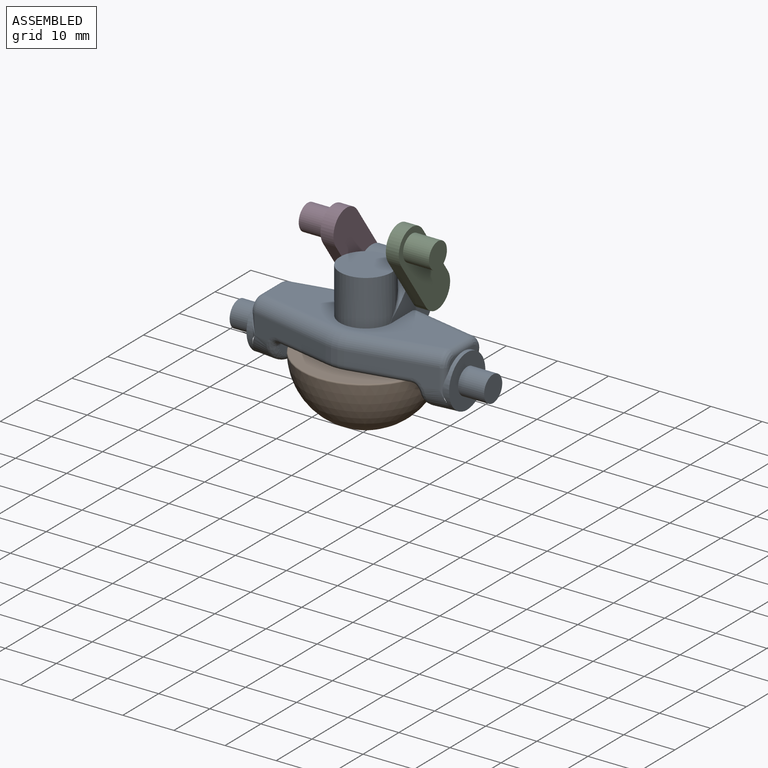
[diagram: assembled view]
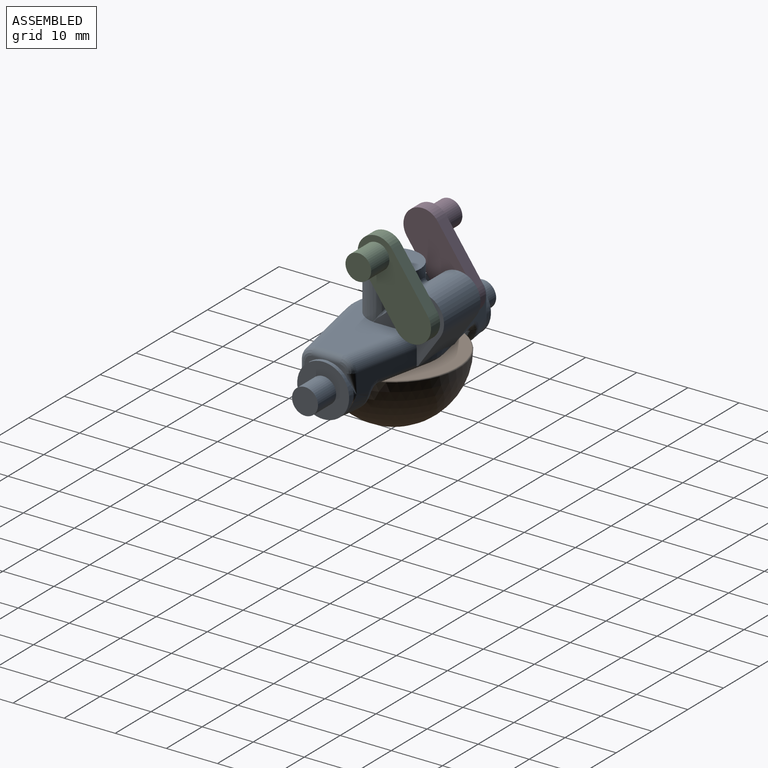
[diagram: assembled view, second angle]
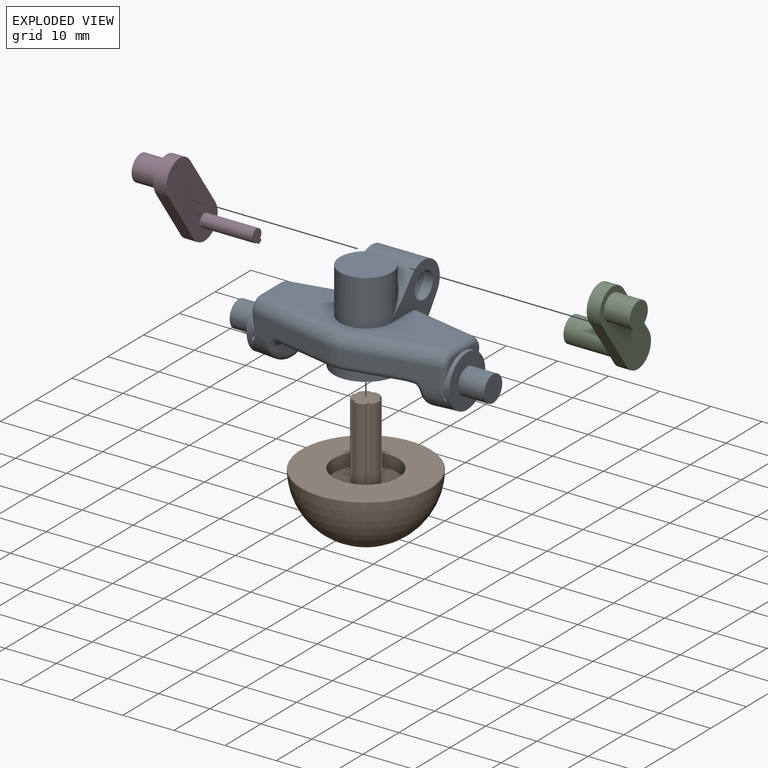
[diagram: exploded view]
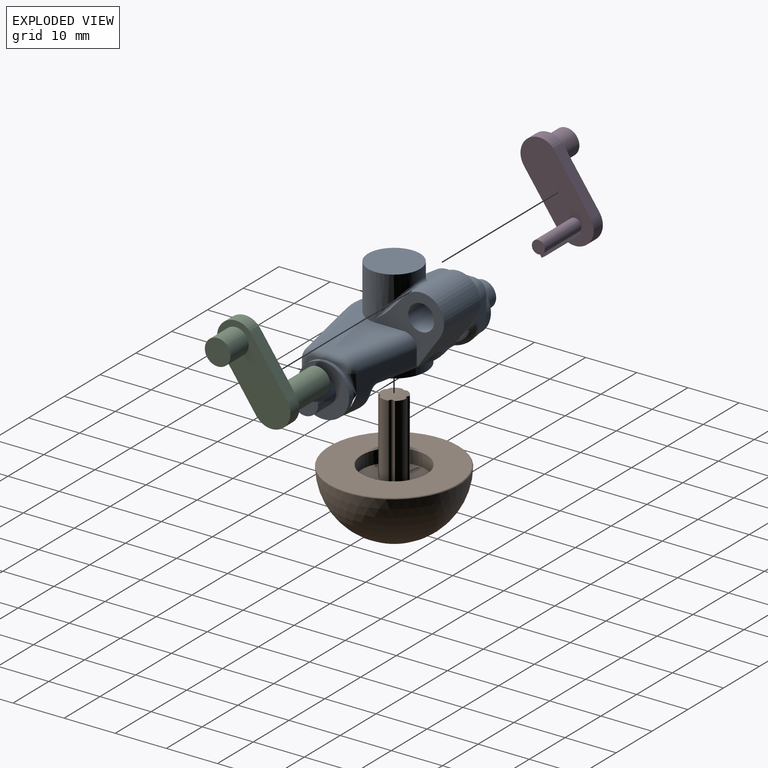
[diagram: exploded view, second angle]
ASSEMBLY  parts=4 mates=4
PART A: 94 faces, bbox 50x23.2x20.6 mm
  f0: plane 4.13x2.05mm, normal (-1,0,0), area 2.1mm2, adj f30,f91,f92,f93
  f1: plane 4.05x2.01mm, normal (1,0,0), area 2.1mm2, adj f45,f86,f87,f88
  f2: plane 3.25x3.06mm, normal (0,-0.74,0.67), area 4.9mm2, adj f62,f68,f81
  f3: cylinder r=1.27mm len=10.23mm, axis (0,1,0), area 18.9mm2, adj f5,f8,f21,f31,f32,f35,f36,f69
  f4: cylinder r=1.27mm len=10.23mm, axis (0,1,0), area 18.9mm2, adj f6,f7,f38,f46,f47,f50,f51,f71
  f5: plane 4.77x1.2mm, normal (0,0,-1), area 1.9mm2, adj f3,f11,f69
  f6: plane 4.77x1.2mm, normal (0,0,-1), area 1.9mm2, adj f4,f14,f71
  f7: plane 4.77x1.2mm, normal (0,0,-1), area 1.9mm2, adj f4,f13,f71
  f8: plane 4.77x1.2mm, normal (0,0,-1), area 1.9mm2, adj f3,f10,f69
  f9: torus R=7.62mm, axis (0,0,1), area 5.8mm2, adj f10,f13,f24,f70
  f10: cylinder r=1.27mm len=11.39mm, axis (0.98,-0.21,0), area 19.1mm2, adj f8,f9,f25,f31,f69,f70
  f11: cylinder r=1.27mm len=11.39mm, axis (0.98,0.21,0), area 18.1mm2, adj f5,f12,f16,f23,f36,f57,f68,f69
  f12: torus R=7.62mm, axis (0,0,1), area 5.8mm2, adj f11,f14,f22,f70
  f13: cylinder r=1.27mm len=11.39mm, axis (-0.98,-0.21,0), area 19.1mm2, adj f7,f9,f40,f46,f70,f71
  f14: cylinder r=1.27mm len=11.39mm, axis (-0.98,0.21,0), area 18.1mm2, adj f6,f12,f17,f39,f51,f65,f67,f70
  f15: plane 35.56x11.77mm, normal (0,0,1), area 226.9mm2, adj f18,f19,f52,f53,f54,f56,f67,f68
  f16: plane 12.94x3.81mm, normal (-0.21,0.98,0), area 38.1mm2, adj f11,f19,f26,f36,f68,f93
  f17: plane 0.35x0.11mm, normal (0.21,0.98,0), area 0mm2, adj f14,f22,f79
  f18: cylinder r=2.54mm len=15.49mm, axis (0.98,-0.21,0), area 52.9mm2, adj f15,f39,f58,f59,f67,f87
  f19: cylinder r=2.54mm len=15.49mm, axis (-0.98,-0.21,0), area 52.9mm2, adj f15,f16,f60,f64,f68,f92
  f20: plane 4.12x2.05mm, normal (-1,0,0), area 2.1mm2, adj f30,f89,f90,f91
  f21: plane 8.65x2.54mm, normal (1,0,0), area 16mm2, adj f3,f33,f34
  f22: cylinder r=8.89mm len=3.66mm, axis (0,0,1), area 1.1mm2, adj f12,f17,f23,f78
  f23: plane 0.35x0.11mm, normal (-0.21,0.98,0), area 0mm2, adj f11,f22,f77
  f24: cylinder r=8.89mm len=3.66mm, axis (0,0,1), area 9.4mm2, adj f9,f25,f40,f53
  f25: plane 16.21x3.81mm, normal (-0.21,-0.98,0), area 46.6mm2, adj f10,f24,f26,f31,f54,f89
  f26: bspline ~12.3x5.08mm, area 59.5mm2, adj f16,f25,f30,f32,f33,f34,f35,f89
  f27: plane 5.08x5.08mm, normal (-1,0,0), area 20.3mm2, adj f28
  f28: cylinder r=2.54mm len=5.08mm, axis (-1,0,0), area 81.1mm2, adj f27,f29
  f29: plane 10.16x10.16mm, normal (-1,0,0), area 60.8mm2, adj f28,f30
  f30: cylinder r=5.08mm len=10.16mm, axis (-1,0,0), area 27.8mm2, adj f0,f20,f26,f29,f89,f91,f93
  f31: bspline ~2.57x2.08mm, area 3.9mm2, adj f3,f10,f25,f32
  f32: bspline ~2.59x2.13mm, area 2.8mm2, adj f3,f26,f31,f33
  f33: bspline ~6.74x4.37mm, area 13.1mm2, adj f21,f26,f32,f34
  f34: bspline ~6.74x4.37mm, area 13.1mm2, adj f21,f26,f33,f35
  f35: bspline ~2.59x2.13mm, area 2.8mm2, adj f3,f26,f34,f36
  f36: bspline ~2.46x1.91mm, area 3.9mm2, adj f3,f11,f16,f35
  f37: plane 4.05x2.01mm, normal (1,0,0), area 2.1mm2, adj f45,f84,f85,f86
  f38: plane 8.65x2.54mm, normal (-1,0,0), area 16mm2, adj f4,f48,f49
  f39: plane 12.94x3.81mm, normal (0.21,0.98,0), area 38.1mm2, adj f14,f18,f41,f51,f67,f88
  f40: plane 16.21x3.81mm, normal (0.21,-0.98,0), area 46.6mm2, adj f13,f24,f41,f46,f52,f84
  f41: bspline ~12.3x5.08mm, area 59.5mm2, adj f39,f40,f45,f47,f48,f49,f50,f84
  f42: plane 5.08x5.08mm, normal (1,0,0), area 20.3mm2, adj f43
  f43: cylinder r=2.54mm len=5.08mm, axis (1,0,0), area 81.1mm2, adj f42,f44
  f44: plane 10.16x10.16mm, normal (1,0,0), area 60.8mm2, adj f43,f45
  f45: cylinder r=5.08mm len=10.16mm, axis (1,0,0), area 27.8mm2, adj f1,f37,f41,f44,f84,f86,f88
  f46: bspline ~2.57x2.08mm, area 3.9mm2, adj f4,f13,f40,f47
  f47: bspline ~2.59x2.13mm, area 2.8mm2, adj f4,f41,f46,f48
  f48: bspline ~7.46x4.37mm, area 13.1mm2, adj f38,f41,f47,f49
  f49: bspline ~7.46x4.37mm, area 13.1mm2, adj f38,f41,f48,f50
  f50: bspline ~2.59x2.13mm, area 2.8mm2, adj f4,f41,f49,f51
  f51: bspline ~2.46x1.91mm, area 3.9mm2, adj f4,f14,f39,f50
  f52: cylinder r=2.54mm len=17mm, axis (0.98,0.21,0), area 66.6mm2, adj f15,f40,f53,f85
  f53: torus R=6.35mm, axis (0,0,1), area 13.2mm2, adj f15,f24,f52,f54
  f54: cylinder r=2.54mm len=17mm, axis (-0.98,0.21,0), area 66.6mm2, adj f15,f25,f53,f90
  f55: plane 10.19x10.19mm, normal (0,0,1), area 81.5mm2, adj f56
  f56: cylinder r=5.09mm len=10.19mm, axis (0,0,1), area 210.9mm2, adj f15,f55,f81,f82,f83
  f57: plane 1.6x0.39mm, normal (0,0.16,-0.99), area 0.2mm2, adj f11,f61,f68,f76
  f58: cylinder r=4.45mm len=2.29mm, axis (-1,0,0), area 0.1mm2, adj f18,f59,f67
  f59: plane 2.29x0.48mm, normal (0,0,-1), area 0.6mm2, adj f18,f58,f67
  f60: plane 2.29x0.48mm, normal (0,0,-1), area 0.6mm2, adj f19,f64,f68
  f61: plane 10.33x6.32mm, normal (0,0.82,-0.57), area 70.4mm2, adj f57,f62,f65,f67,f68,f76,f77,f78
  f62: cylinder r=4.45mm len=10.21mm, axis (-1,0,0), area 135.7mm2, adj f2,f61,f63,f67,f68,f82
  f63: plane 3.25x3.06mm, normal (0,-0.74,0.67), area 4.9mm2, adj f62,f67,f83
  f64: cylinder r=4.45mm len=2.29mm, axis (-1,0,0), area 0.1mm2, adj f19,f60,f68
  f65: plane 1.6x0.39mm, normal (0,0.16,-0.99), area 0.2mm2, adj f14,f61,f67,f80
  f66: cylinder r=2.54mm len=10.21mm, axis (-1,0,0), area 163mm2, adj f67,f68
  f67: plane 13.94x13.42mm, normal (1,0,0), area 63.8mm2, adj f14,f15,f18,f39,f58,f59,f61,f62
  f68: plane 13.94x13.42mm, normal (-1,0,0), area 63.8mm2, adj f2,f11,f15,f16,f19,f57,f60,f61
  f69: cylinder r=12.71mm len=11.54mm, axis (0,0,-1), area 0.6mm2, adj f3,f5,f8,f10,f11,f70
  f70: plane 25.43x15.95mm, normal (0,0,-1), area 210.8mm2, adj f9,f10,f11,f12,f13,f14,f69,f71
  f71: cylinder r=12.71mm len=11.54mm, axis (0,0,-1), area 0.6mm2, adj f4,f6,f7,f13,f14,f70
  f72: cylinder r=2.55mm len=15.27mm, axis (0,0,1), area 244.8mm2, adj f73,f75
  f73: plane 12.65x12.65mm, normal (0,0,-1), area 105.2mm2, adj f72,f74
  f74: cylinder r=6.32mm len=12.65mm, axis (0,0,1), area 101.9mm2, adj f70,f73
  f75: plane 5.11x5.11mm, normal (0,0,-1), area 20.5mm2, adj f72
  f76: bspline ~3.01x1.21mm, area 0.4mm2, adj f11,f57,f61,f77
  f77: cylinder r=0.51mm len=0.46mm, axis (0.94,0.2,0.28), area 0.1mm2, adj f23,f61,f76,f78
  f78: bspline ~3.87x0.58mm, area 1.2mm2, adj f22,f61,f77,f79
  f79: cylinder r=0.51mm len=0.46mm, axis (0.94,-0.2,-0.28), area 0.1mm2, adj f17,f61,f78,f80
  f80: bspline ~3.01x1.21mm, area 0.4mm2, adj f14,f61,f65,f79
  f81: bspline ~6.92x6.21mm, area 7.3mm2, adj f2,f15,f56,f68,f82
  f82: bspline ~5.37x1.78mm, area 4.6mm2, adj f56,f62,f81,f83
  f83: bspline ~6.92x6.21mm, area 7.3mm2, adj f15,f56,f63,f67,f82
  f84: cylinder r=1.27mm len=6.78mm, axis (0,0,-1), area 4.5mm2, adj f37,f40,f41,f45,f85
  f85: bspline ~3x2.99mm, area 5.9mm2, adj f37,f52,f84,f86
  f86: cylinder r=1.27mm len=5.5mm, axis (0,1,0), area 11mm2, adj f1,f15,f37,f45,f85,f87
  f87: bspline ~2.99x2.67mm, area 5.9mm2, adj f1,f18,f86,f88
  f88: cylinder r=1.27mm len=6.78mm, axis (0,0,-1), area 4.5mm2, adj f1,f39,f41,f45,f87
  f89: cylinder r=1.27mm len=6.78mm, axis (0,0,-1), area 4.5mm2, adj f20,f25,f26,f30,f90
  f90: bspline ~2.99x2.67mm, area 5.9mm2, adj f20,f54,f89,f91
  f91: cylinder r=1.27mm len=5.5mm, axis (0,1,0), area 11mm2, adj f0,f15,f20,f30,f90,f92
  f92: bspline ~3x2.99mm, area 5.9mm2, adj f0,f19,f91,f93
  f93: cylinder r=1.27mm len=6.78mm, axis (0,0,-1), area 4.5mm2, adj f0,f16,f26,f30,f92
PART B: 31 faces, bbox 27.5x27.5x25.4 mm
  f0: cylinder r=2.54mm len=14.98mm, axis (0,0,1), area 32.3mm2, adj f7,f8,f12,f20,f23,f30
  f1: cylinder r=2.54mm len=14.98mm, axis (0,0,1), area 32.3mm2, adj f8,f9,f12,f17,f20,f30
  f2: cylinder r=2.54mm len=14.98mm, axis (0,0,1), area 32.3mm2, adj f6,f7,f12,f23,f26,f30
  f3: cylinder r=2.54mm len=14.98mm, axis (0,0,1), area 32.3mm2, adj f5,f6,f12,f26,f29,f30
  f4: cylinder r=2.54mm len=14.98mm, axis (0,0,1), area 32.3mm2, adj f5,f9,f12,f17,f29,f30
  f5: cylinder r=0.64mm len=14.73mm, axis (0,0,1), area 17.7mm2, adj f3,f4,f29,f30
  f6: cylinder r=0.64mm len=14.73mm, axis (0,0,1), area 17.7mm2, adj f2,f3,f26,f30
  f7: cylinder r=0.64mm len=14.73mm, axis (0,0,1), area 17.7mm2, adj f0,f2,f23,f30
  f8: cylinder r=0.64mm len=14.73mm, axis (0,0,1), area 17.7mm2, adj f0,f1,f20,f30
  f9: cylinder r=0.64mm len=14.73mm, axis (0,0,1), area 17.7mm2, adj f1,f4,f17,f30
  f10: plane 24.89x24.89mm, normal (0,0,1), area 359.8mm2, adj f13,f14
  f11: sphere r=12.7mm, area 992.7mm2, adj f14
  f12: plane 12.7x12.7mm, normal (0,0,1), area 86.6mm2, adj f0,f1,f2,f3,f4,f13,f15,f16
  f13: cylinder r=6.35mm len=12.7mm, axis (0,0,1), area 101.3mm2, adj f10,f12
  f14: torus R=12.44mm, axis (0,0,-1), area 32mm2, adj f10,f11
  f15: sphere r=0.64mm, area 0.6mm2, adj f12,f16
  f16: cylinder r=0.64mm len=2.86mm, axis (0,-1,0), area 3.8mm2, adj f12,f15,f17
  f17: sphere r=0.64mm, area 1mm2, adj f1,f4,f9,f12,f16
  f18: sphere r=0.64mm, area 0.6mm2, adj f12,f19
  f19: cylinder r=0.64mm len=3.06mm, axis (0.95,-0.31,0), area 3.8mm2, adj f12,f18,f20
  f20: sphere r=0.64mm, area 1mm2, adj f0,f1,f8,f12,f19
  f21: sphere r=0.64mm, area 0.6mm2, adj f12,f22
  f22: cylinder r=0.64mm len=2.96mm, axis (0.59,0.81,0), area 3.8mm2, adj f12,f21,f23
  f23: sphere r=0.64mm, area 1mm2, adj f0,f2,f7,f12,f22
  f24: sphere r=0.64mm, area 0.6mm2, adj f12,f25
  f25: cylinder r=0.64mm len=2.96mm, axis (-0.59,0.81,0), area 3.8mm2, adj f12,f24,f26
  f26: sphere r=0.64mm, area 1mm2, adj f2,f3,f6,f12,f25
  f27: sphere r=0.64mm, area 0.6mm2, adj f12,f28
  f28: cylinder r=0.64mm len=3.06mm, axis (-0.95,-0.31,0), area 3.8mm2, adj f12,f27,f29
  f29: sphere r=0.64mm, area 1mm2, adj f3,f4,f5,f12,f28
  f30: sphere r=12.7mm, area 19.3mm2, adj f0,f1,f2,f3,f4,f5,f6,f7
PART C: 16 faces, bbox 17.9x7.8x19.5 mm
  f0: plane 19.51x7.83mm, normal (-1,0,0), area 112.1mm2, adj f1,f2,f3,f4,f5,f12
  f1: plane 12.14x2.54mm, normal (0,1,0.04), area 30.9mm2, adj f0,f2,f5,f6
  f2: cylinder r=3.68mm len=7.36mm, axis (-1,0,0), area 29.9mm2, adj f0,f1,f3,f6
  f3: plane 2.54x0.01mm, normal (0,0.59,0.81), area 0mm2, adj f0,f2,f4,f6
  f4: plane 11.96x2.54mm, normal (0,-1,-0.04), area 30.4mm2, adj f0,f3,f5,f6
  f5: cylinder r=3.68mm len=7.36mm, axis (-1,0,0), area 29.4mm2, adj f0,f1,f4,f6
  f6: plane 19.51x7.83mm, normal (1,0,0), area 112.3mm2, adj f1,f2,f3,f4,f5,f7
  f7: cylinder r=2.51mm len=5.08mm, axis (-1,0,0), area 80.3mm2, adj f6,f8
  f8: plane 5.03x5.03mm, normal (1,0,0), area 19.9mm2, adj f7
  f9: cylinder r=1.27mm len=10.24mm, axis (1,0,0), area 73.8mm2, adj f10,f13,f14,f15
  f10: plane 10.24x0.57mm, normal (0,-1,0), area 5.8mm2, adj f9,f11,f14,f15
  f11: plane 10.24x0.76mm, normal (0,0,-1), area 7.8mm2, adj f10,f13,f14,f15
  f12: cylinder r=2.53mm len=10.24mm, axis (1,0,0), area 162.5mm2, adj f0,f14
  f13: plane 10.24x0.57mm, normal (0,1,0), area 5.8mm2, adj f9,f11,f14,f15
  f14: plane 5.05x5.05mm, normal (-1,0,0), area 14.6mm2, adj f9,f10,f11,f12,f13
  f15: plane 3.05x2.54mm, normal (-1,0,0), area 5.5mm2, adj f9,f10,f11,f13
PART D: 14 faces, bbox 17.9x7.8x19.5 mm
  f0: plane 19.51x7.83mm, normal (1,0,0), area 126.7mm2, adj f1,f2,f3,f4,f5,f9,f10,f11
  f1: plane 12.14x2.54mm, normal (0,1,0.04), area 30.9mm2, adj f0,f2,f5,f6
  f2: cylinder r=3.68mm len=7.36mm, axis (1,0,0), area 29.9mm2, adj f0,f1,f3,f6
  f3: plane 2.54x0.01mm, normal (0,0.59,0.81), area 0mm2, adj f0,f2,f4,f6
  f4: plane 11.96x2.54mm, normal (0,-1,-0.04), area 30.4mm2, adj f0,f3,f5,f6
  f5: cylinder r=3.68mm len=7.36mm, axis (1,0,0), area 29.4mm2, adj f0,f1,f4,f6
  f6: plane 19.51x7.83mm, normal (-1,0,0), area 112.3mm2, adj f1,f2,f3,f4,f5,f7
  f7: cylinder r=2.51mm len=5.08mm, axis (1,0,0), area 80.3mm2, adj f6,f8
  f8: plane 5.03x5.03mm, normal (-1,0,0), area 19.9mm2, adj f7
  f9: cylinder r=1.27mm len=10.24mm, axis (-1,0,0), area 73.8mm2, adj f0,f10,f12,f13
  f10: plane 10.24x0.57mm, normal (0,1,0), area 5.8mm2, adj f0,f9,f11,f13
  f11: plane 10.24x0.76mm, normal (0,0,1), area 7.8mm2, adj f0,f10,f12,f13
  f12: plane 10.24x0.57mm, normal (0,-1,0), area 5.8mm2, adj f0,f9,f11,f13
  f13: plane 3.05x2.54mm, normal (1,0,0), area 5.5mm2, adj f9,f10,f11,f12
PLACE A t=(-24.99,25.06,21.91)mm fixed
PLACE B rot(axis=(0,0,1),151.9deg) t=(-24.99,25.06,21.91)mm
PLACE C rot(axis=(-1,0,0),147.1deg) t=(-19.87,67.55,2.82)mm
PLACE D rot(axis=(-1,0,0),147.1deg) t=(-45.35,67.55,2.82)mm
MATE planar B.f14 <-> A.f56  axis (0,0,1) through (-24.99,25.06,19.37)mm
MATE cylindrical A.f56 <-> B.f0  axis (0,0,-1) through (-24.99,25.06,19.39)mm
MATE fastened D.f2 <-> C.f2  axis (1,0,0) through (-30.11,33.96,31.53)mm
MATE revolute C.f2 <-> A.f58  axis (-1,0,0) through (-19.87,33.96,31.53)mm
